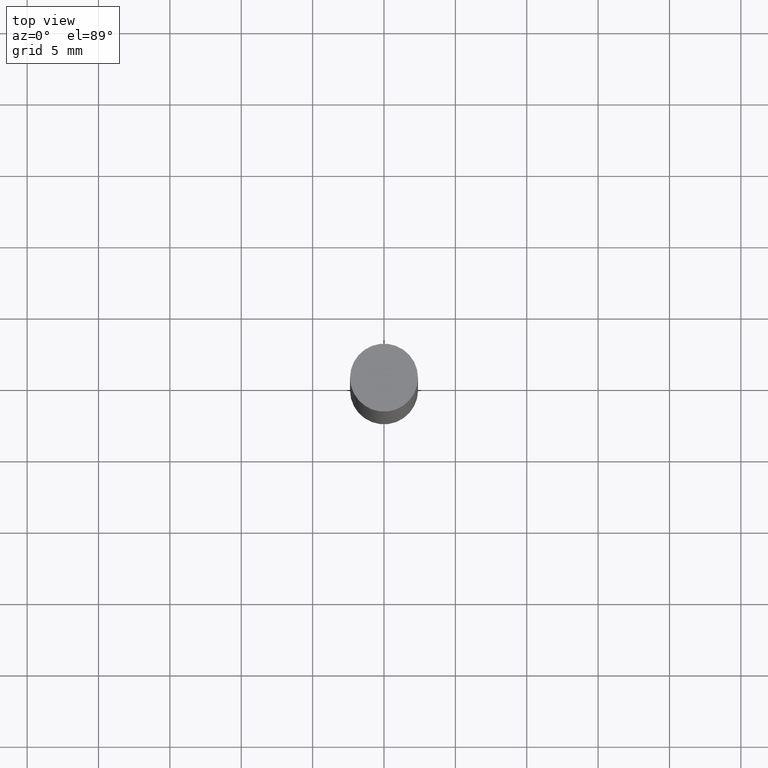
[diagram: clean part render]
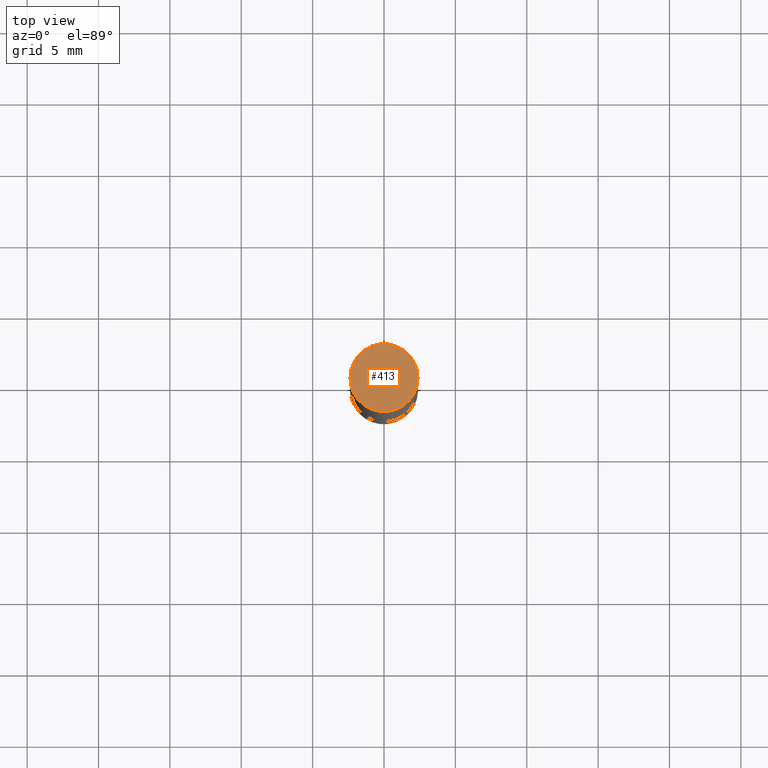
[diagram: same view with one face highlighted and labeled with its STEP entity id]
A machine part, top view. The second image highlights one B-rep face of the part: STEP entity #413.
In plain terms, the highlighted planar face has unit normal (0, 0, 1).
Its self-contained STEP definition (entity closure, byte-faithful):
#167 = CARTESIAN_POINT ( 'NONE',  ( 0.09375000000000001388, -6.532436783244791280E-16, 2.731847993664263218E-16 ) ) ;
#189 = DIRECTION ( 'NONE',  ( 1.000000000000000000, -6.982962677686265922E-15, 0.000000000000000000 ) ) ;
#206 = AXIS2_PLACEMENT_3D ( 'NONE', #348, #654, #189 ) ;
#208 = PLANE ( 'NONE',  #536 ) ;
#211 = VERTEX_POINT ( 'NONE', #345 ) ;
#227 = EDGE_CURVE ( 'NONE', #211, #650, #450, .T. ) ;
#278 = CIRCLE ( 'NONE', #640, 0.09375000000000001388 ) ;
#304 = DIRECTION ( 'NONE',  ( -1.000000000000000000, 6.982962677686265922E-15, -9.839502134516470631E-33 ) ) ;
#317 = ORIENTED_EDGE ( 'NONE', *, *, #623, .T. ) ;
#321 = DIRECTION ( 'NONE',  ( 2.445468806185136597E-29, 3.492890411551752677E-15, 1.000000000000000000 ) ) ;
#336 = ORIENTED_EDGE ( 'NONE', *, *, #227, .T. ) ;
#345 = CARTESIAN_POINT ( 'NONE',  ( -0.09375000000000001388, -1.033619216626503578E-17, 2.731847993664286391E-16 ) ) ;
#348 = CARTESIAN_POINT ( 'NONE',  ( 4.890937612370273194E-29, 1.409072708608417355E-18, 2.731847993664263218E-16 ) ) ;
#364 = CARTESIAN_POINT ( 'NONE',  ( 6.546527510331364135E-16, 0.09375000000000001388, 0.000000000000000000 ) ) ;
#413 = ADVANCED_FACE ( 'NONE', ( #674 ), #208, .T. ) ;
#429 = CARTESIAN_POINT ( 'NONE',  ( 4.890937612370273194E-29, 1.409072708608417355E-18, 2.731847993664263218E-16 ) ) ;
#450 = CIRCLE ( 'NONE', #206, 0.09375000000000001388 ) ;
#474 = EDGE_LOOP ( 'NONE', ( #317, #336 ) ) ;
#485 = DIRECTION ( 'NONE',  ( 1.000000000000000000, -6.982962677686265922E-15, 0.000000000000000000 ) ) ;
#536 = AXIS2_PLACEMENT_3D ( 'NONE', #364, #672, #304 ) ;
#623 = EDGE_CURVE ( 'NONE', #650, #211, #278, .T. ) ;
#640 = AXIS2_PLACEMENT_3D ( 'NONE', #429, #321, #485 ) ;
#650 = VERTEX_POINT ( 'NONE', #167 ) ;
#654 = DIRECTION ( 'NONE',  ( 2.445468806185136597E-29, 3.492890411551752677E-15, 1.000000000000000000 ) ) ;
#672 = DIRECTION ( 'NONE',  ( 2.438088387897959769E-29, 3.492890411551753071E-15, 1.000000000000000000 ) ) ;
#674 = FACE_OUTER_BOUND ( 'NONE', #474, .T. ) ;